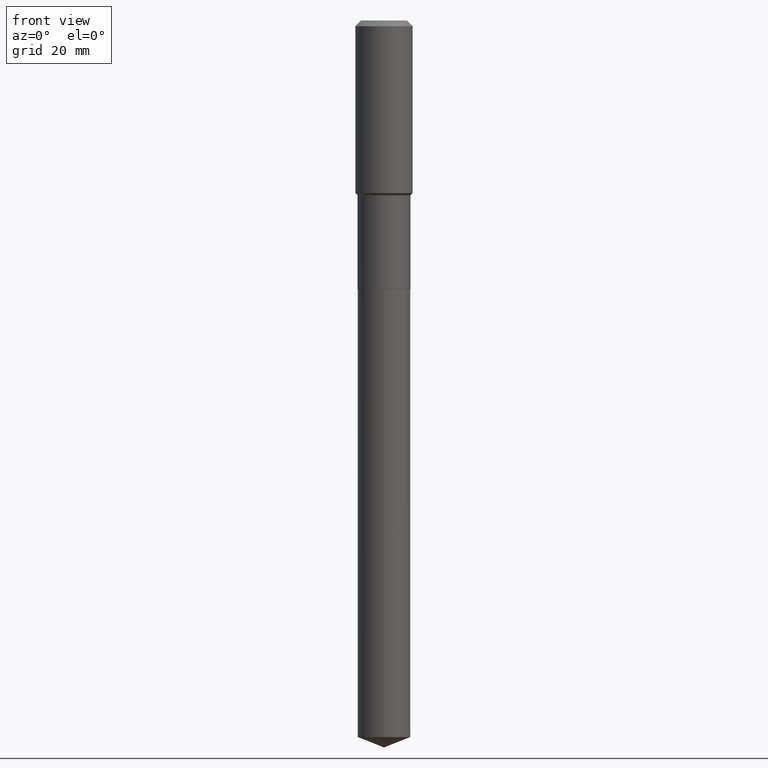
[diagram: clean part render]
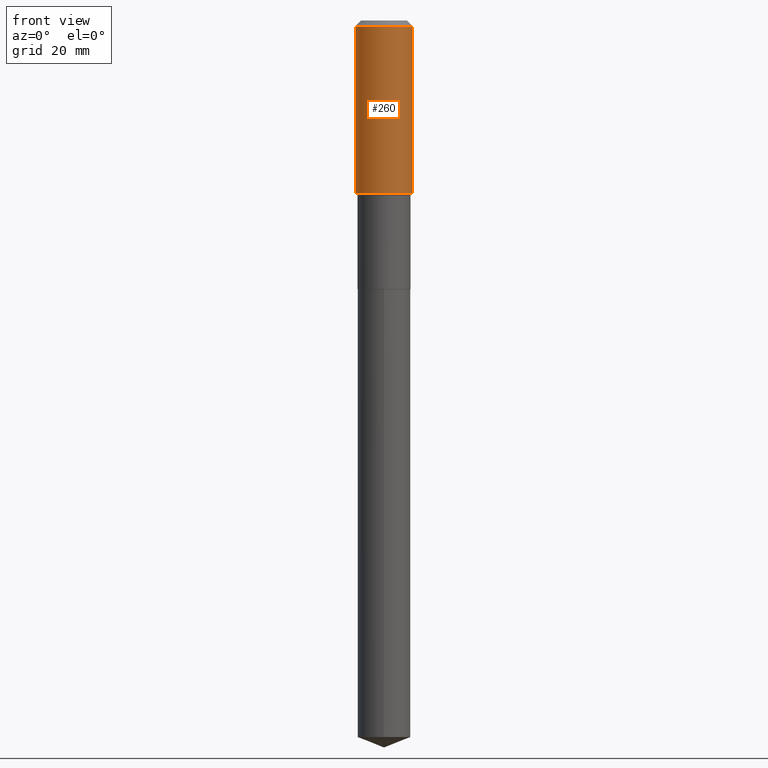
[diagram: same view with one face highlighted and labeled with its STEP entity id]
A machine part, front view. The second image highlights one B-rep face of the part: STEP entity #260.
In plain terms, the highlighted cylindrical surface (edge-blend (fillet) strip) has radius 7.9997 mm, axis along (-0, 0, 1).
Its self-contained STEP definition (entity closure, byte-faithful):
#1 = CYLINDRICAL_SURFACE ( 'NONE', #186, 0.3149500000000001743 ) ;
#6 = LINE ( 'NONE', #376, #258 ) ;
#7 = EDGE_CURVE ( 'NONE', #151, #88, #171, .T. ) ;
#47 = EDGE_LOOP ( 'NONE', ( #158, #226, #422, #311 ) ) ;
#64 = CARTESIAN_POINT ( 'NONE',  ( 0.000000000000000000, 0.000000000000000000, 0.000000000000000000 ) ) ;
#73 = CARTESIAN_POINT ( 'NONE',  ( 0.3149500000000000077, -2.419212504871020909E-15, -0.06299000000000036514 ) ) ;
#88 = VERTEX_POINT ( 'NONE', #73 ) ;
#98 = LINE ( 'NONE', #243, #129 ) ;
#113 = DIRECTION ( 'NONE',  ( -2.445468806185136877E-29, 3.491481338843145188E-15, 1.000000000000000000 ) ) ;
#125 = VERTEX_POINT ( 'NONE', #281 ) ;
#128 = DIRECTION ( 'NONE',  ( -2.445468806185136597E-29, 3.491481338843145583E-15, 1.000000000000000000 ) ) ;
#129 = VECTOR ( 'NONE', #234, 39.37007874015748143 ) ;
#151 = VERTEX_POINT ( 'NONE', #173 ) ;
#158 = ORIENTED_EDGE ( 'NONE', *, *, #439, .F. ) ;
#167 = CARTESIAN_POINT ( 'NONE',  ( 1.540400801016026329E-30, -2.199284095337310135E-16, -0.06299000000000036514 ) ) ;
#171 = CIRCLE ( 'NONE', #366, 0.3149500000000000077 ) ;
#173 = CARTESIAN_POINT ( 'NONE',  ( -0.3149500000000000077, -1.183605334316210605E-15, -0.06299000000000036514 ) ) ;
#185 = DIRECTION ( 'NONE',  ( -2.445468806185136597E-29, 3.491481338843145583E-15, 1.000000000000000000 ) ) ;
#186 = AXIS2_PLACEMENT_3D ( 'NONE', #64, #185, #254 ) ;
#187 = CARTESIAN_POINT ( 'NONE',  ( -0.3149500000000002298, -4.385136605375126945E-15, -1.896900000000000253 ) ) ;
#214 = EDGE_CURVE ( 'NONE', #125, #88, #98, .T. ) ;
#226 = ORIENTED_EDGE ( 'NONE', *, *, #306, .T. ) ;
#234 = DIRECTION ( 'NONE',  ( -2.445468806185136877E-29, 3.491481338843145188E-15, 1.000000000000000000 ) ) ;
#243 = CARTESIAN_POINT ( 'NONE',  ( 0.3149500000000001743, -2.199284095337290660E-15, 1.535751875536930690E-29 ) ) ;
#254 = DIRECTION ( 'NONE',  ( 1.000000000000000000, -6.982962677686265922E-15, 4.876176775795935232E-29 ) ) ;
#256 = DIRECTION ( 'NONE',  ( 1.000000000000000000, -6.982962677686264344E-15, 0.000000000000000000 ) ) ;
#258 = VECTOR ( 'NONE', #113, 39.37007874015748143 ) ;
#260 = ADVANCED_FACE ( 'NONE', ( #278 ), #1, .T. ) ;
#278 = FACE_OUTER_BOUND ( 'NONE', #47, .T. ) ;
#281 = CARTESIAN_POINT ( 'NONE',  ( 0.3149500000000002298, -8.822275046988854378E-15, -1.896900000000000253 ) ) ;
#284 = CIRCLE ( 'NONE', #463, 0.3149500000000002298 ) ;
#306 = EDGE_CURVE ( 'NONE', #453, #125, #284, .T. ) ;
#311 = ORIENTED_EDGE ( 'NONE', *, *, #7, .F. ) ;
#366 = AXIS2_PLACEMENT_3D ( 'NONE', #167, #128, #431 ) ;
#376 = CARTESIAN_POINT ( 'NONE',  ( -0.3149500000000001743, 2.237854346276436774E-15, -1.549218606675783237E-29 ) ) ;
#422 = ORIENTED_EDGE ( 'NONE', *, *, #214, .T. ) ;
#431 = DIRECTION ( 'NONE',  ( 1.000000000000000000, -6.982962677686266711E-15, 0.000000000000000000 ) ) ;
#439 = EDGE_CURVE ( 'NONE', #453, #151, #6, .T. ) ;
#442 = CARTESIAN_POINT ( 'NONE',  ( 4.638809778452586070E-29, -6.622990951651563719E-15, -1.896900000000000253 ) ) ;
#448 = DIRECTION ( 'NONE',  ( -2.445468806185136597E-29, 3.491481338843145583E-15, 1.000000000000000000 ) ) ;
#453 = VERTEX_POINT ( 'NONE', #187 ) ;
#463 = AXIS2_PLACEMENT_3D ( 'NONE', #442, #448, #256 ) ;